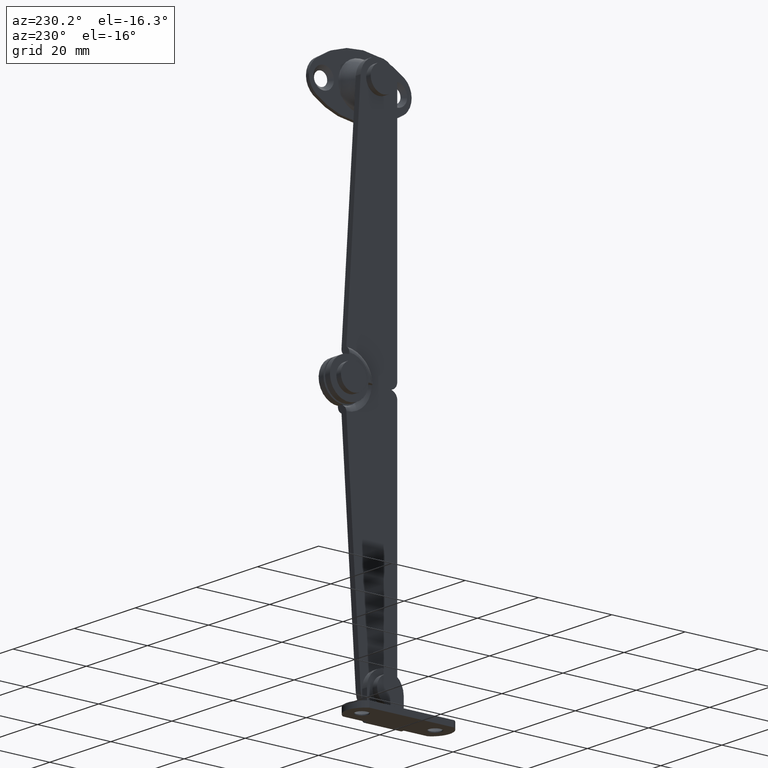
[diagram: clean part render]
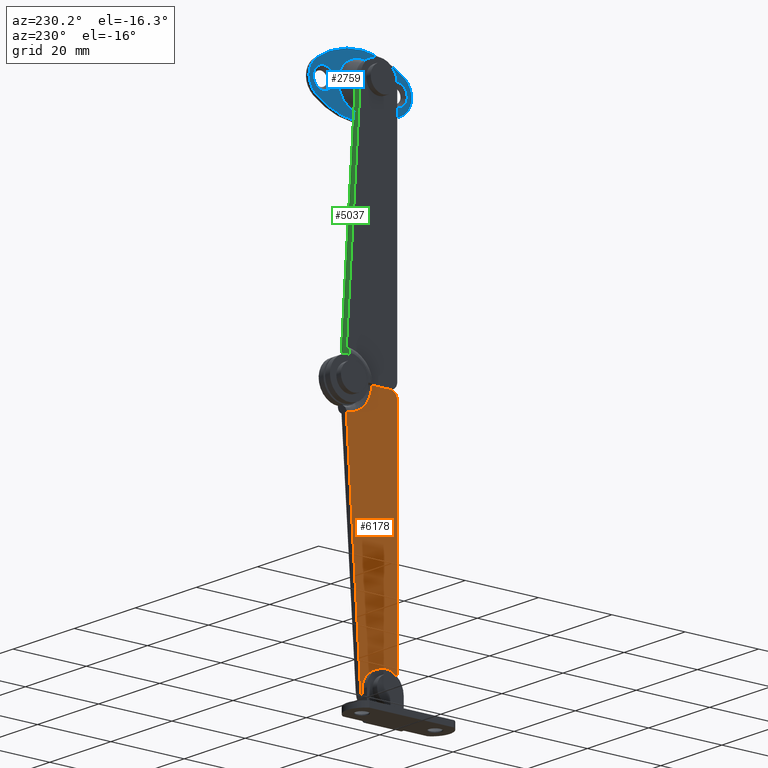
[diagram: same view with three faces highlighted in distinct colors, each labeled with its STEP entity id]
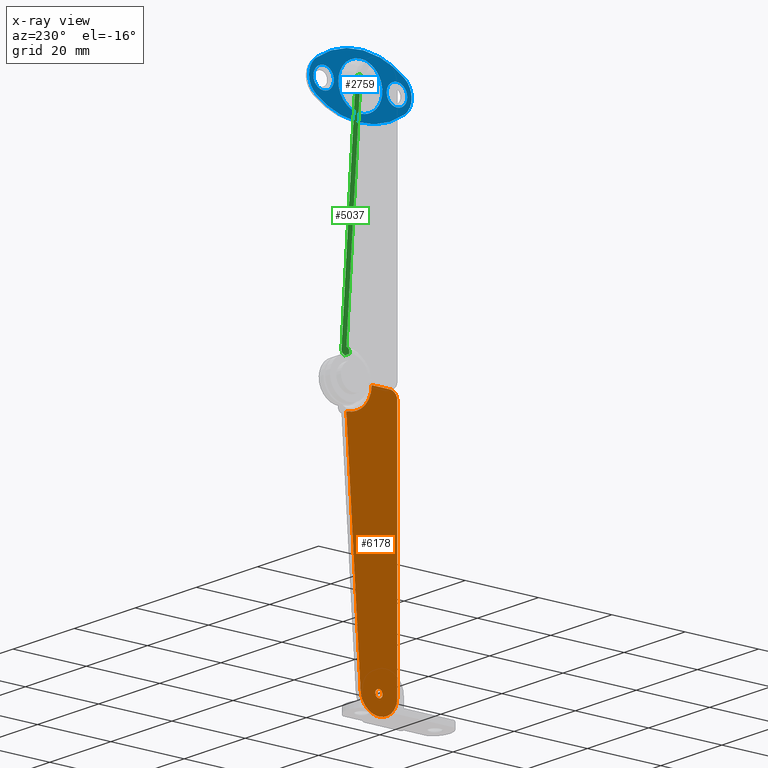
[diagram: x-ray of the same camera — body ghosted, the three highlighted faces saturated]
A machine part, auxiliary view with three faces highlighted in distinct colors.
The next image is the same camera in x-ray (body ghosted, the three faces saturated) — at least one of them is partly hidden behind the body in this view.
Their STEP definitions:

[orange] entity #6178 — the highlighted face is a freeform B-spline surface patch.
#5275=CARTESIAN_POINT('',(2.549987999998014,-2.683172118815608,-67.645771764199225));
#5276=VERTEX_POINT('',#5275);
#5277=CARTESIAN_POINT('',(2.549988000000050,-1.919616184445495,-68.000030000000010));
#5278=VERTEX_POINT('',#5277);
#5279=CARTESIAN_POINT('',(2.549987999998014,-2.683172118815608,-67.645771764199225));
#5280=CARTESIAN_POINT('',(2.549987999998243,-2.595603327746758,-67.749543014997982));
#5281=CARTESIAN_POINT('',(2.549987999998875,-2.362829680662697,-67.931769844433859));
#5282=CARTESIAN_POINT('',(2.549987999999638,-2.073503944997746,-68.000305190986140));
#5283=CARTESIAN_POINT('',(2.549988000000050,-1.919616184445495,-68.000030000000010));
#5284=B_SPLINE_CURVE_WITH_KNOTS('',3,(#5279,#5280,#5281,#5282,#5283),.UNSPECIFIED.,.F.,.U.,(4,1,4),(0.000000116544715,0.407290841089477,0.868828716377361),.UNSPECIFIED.);
#5285=EDGE_CURVE('',#5276,#5278,#5284,.T.);
#5338=CARTESIAN_POINT('',(2.549988000003763,-2.607970629555844,-66.274655568550969));
#5339=VERTEX_POINT('',#5338);
#5345=CARTESIAN_POINT('',(2.549988000000050,-1.919616184445495,-66.000029999999995));
#5346=VERTEX_POINT('',#5345);
#5347=CARTESIAN_POINT('',(2.549988000000050,-1.919616184445495,-66.000029999999995));
#5348=CARTESIAN_POINT('',(2.549988000000817,-2.062015485553450,-65.999824904008406));
#5349=CARTESIAN_POINT('',(2.549988000002188,-2.314862790564153,-66.055067979524438));
#5350=CARTESIAN_POINT('',(2.549988000003327,-2.527706558355432,-66.198390743589442));
#5351=CARTESIAN_POINT('',(2.549988000003763,-2.607970629555844,-66.274655568550969));
#5352=B_SPLINE_CURVE_WITH_KNOTS('',3,(#5347,#5348,#5349,#5350,#5351),.UNSPECIFIED.,.F.,.U.,(4,1,4),(0.000000071943661,0.427099908639599,0.759289230294971),.UNSPECIFIED.);
#5353=EDGE_CURVE('',#5346,#5339,#5352,.T.);
#5355=CARTESIAN_POINT('',(2.549988000000050,-0.919616184445512,-67.000029815553631));
#5356=VERTEX_POINT('',#5355);
#5357=CARTESIAN_POINT('',(2.549988000000050,-0.919616184445512,-67.000029815553631));
#5358=CARTESIAN_POINT('',(2.549988000000051,-0.919481447174809,-66.869107834173107));
#5359=CARTESIAN_POINT('',(2.549988000000049,-0.968514566673767,-66.623790008594980));
#5360=CARTESIAN_POINT('',(2.549988000000051,-1.172758694498950,-66.301021482622431));
#5361=CARTESIAN_POINT('',(2.549988000000052,-1.494360534941305,-66.062616695706126));
#5362=CARTESIAN_POINT('',(2.549988000000057,-1.772311175118522,-65.999803587308634));
#5363=CARTESIAN_POINT('',(2.549988000000050,-1.919616184445495,-66.000029999999995));
#5364=B_SPLINE_CURVE_WITH_KNOTS('',3,(#5357,#5358,#5359,#5360,#5361,#5362,#5363),.UNSPECIFIED.,.F.,.U.,(4,1,1,1,4),(0.000000232853815,0.392738664325392,0.736389808754300,1.129122720947868,1.570953779327885),.UNSPECIFIED.);
#5365=EDGE_CURVE('',#5356,#5346,#5364,.T.);
#5367=CARTESIAN_POINT('',(2.549988000000050,-1.919616184445495,-68.000030000000010));
#5368=CARTESIAN_POINT('',(2.549988000000053,-1.755921354376147,-68.000338805222484));
#5369=CARTESIAN_POINT('',(2.549988000000048,-1.510827598809567,-67.938435989623869));
#5370=CARTESIAN_POINT('',(2.549988000000048,-1.200772188080484,-67.720010938150622));
#5371=CARTESIAN_POINT('',(2.549988000000057,-0.982172228291304,-67.425318553708109));
#5372=CARTESIAN_POINT('',(2.549988000000046,-0.919410173935548,-67.147323302398846));
#5373=CARTESIAN_POINT('',(2.549988000000050,-0.919616184445512,-67.000029815553631));
#5374=B_SPLINE_CURVE_WITH_KNOTS('',3,(#5367,#5368,#5369,#5370,#5371,#5372,#5373),.UNSPECIFIED.,.F.,.U.,(4,1,1,1,4),(0.000000231876958,0.490926261531667,0.736389906305310,1.129122870276008,1.570953987262268),.UNSPECIFIED.);
#5375=EDGE_CURVE('',#5278,#5356,#5374,.T.);
#5394=CARTESIAN_POINT('',(2.549988000000050,-2.919616184445478,-67.000030184446388));
#5395=VERTEX_POINT('',#5394);
#5396=CARTESIAN_POINT('',(2.549988000000050,-2.919616184445478,-67.000030184446388));
#5397=CARTESIAN_POINT('',(2.549987999999629,-2.919766808498271,-67.131676093438145));
#5398=CARTESIAN_POINT('',(2.549987999998907,-2.872687993892445,-67.365538485281689));
#5399=CARTESIAN_POINT('',(2.549987999998257,-2.749319166814610,-67.567627343766858));
#5400=CARTESIAN_POINT('',(2.549987999998014,-2.683172118815608,-67.645771764199225));
#5401=B_SPLINE_CURVE_WITH_KNOTS('',3,(#5396,#5397,#5398,#5399,#5400),.UNSPECIFIED.,.F.,.U.,(4,1,4),(0.000000097201813,0.394893671305713,0.702050397232917),.UNSPECIFIED.);
#5402=EDGE_CURVE('',#5395,#5276,#5401,.T.);
#5404=CARTESIAN_POINT('',(2.549988000003763,-2.607970629555844,-66.274655568550969));
#5405=CARTESIAN_POINT('',(2.549988000003345,-2.693895390519011,-66.356057708835124));
#5406=CARTESIAN_POINT('',(2.549988000002216,-2.856551784684612,-66.577582877150533));
#5407=CARTESIAN_POINT('',(2.549988000000827,-2.919889351927218,-66.847795910584949));
#5408=CARTESIAN_POINT('',(2.549988000000050,-2.919616184445478,-67.000030184446388));
#5409=B_SPLINE_CURVE_WITH_KNOTS('',3,(#5404,#5405,#5406,#5407,#5408),.UNSPECIFIED.,.F.,.U.,(4,1,4),(0.000000100791723,0.355104070625514,0.811665313370158),.UNSPECIFIED.);
#5410=EDGE_CURVE('',#5339,#5395,#5409,.T.);
#5711=CARTESIAN_POINT('',(2.549988000000100,6.967233794826241,-7.001584790181060));
#5712=VERTEX_POINT('',#5711);
#5723=CARTESIAN_POINT('',(2.549988000000100,0.077884797254867,-2.558285E-015));
#5724=VERTEX_POINT('',#5723);
#5725=CARTESIAN_POINT('',(2.549988000000100,6.967233794826241,-7.001584790181060));
#5726=CARTESIAN_POINT('',(2.549988000000097,6.513700061865754,-6.994296324692864));
#5727=CARTESIAN_POINT('',(2.549988000000109,5.494830044232808,-6.878338535436286));
#5728=CARTESIAN_POINT('',(2.549988000000093,4.198813717470502,-6.431662050461872));
#5729=CARTESIAN_POINT('',(2.549988000000105,3.043626800575817,-5.760433784596992));
#5730=CARTESIAN_POINT('',(2.549988000000142,2.143627717567946,-5.017302159247257));
#5731=CARTESIAN_POINT('',(2.549988000000059,1.332897352812586,-4.063383455490646));
#5732=CARTESIAN_POINT('',(2.549988000000062,0.629622481415214,-2.858705035825897));
#5733=CARTESIAN_POINT('',(2.549988000000126,0.177287778857004,-1.474200598117341));
#5734=CARTESIAN_POINT('',(2.549988000000087,0.077857594597792,-0.453584153547086));
#5735=CARTESIAN_POINT('',(2.549988000000100,0.077884797254867,-2.558285E-015));
#5736=B_SPLINE_CURVE_WITH_KNOTS('',3,(#5725,#5726,#5727,#5728,#5729,#5730,#5731,#5732,#5733,#5734,#5735),.UNSPECIFIED.,.F.,.U.,(4,1,1,1,1,1,1,1,4),(0.000000168391248,1.360791377697382,3.061809649063527,4.082435467170000,5.358205720766605,6.548821211609316,7.824607300595920,9.525638363214146,10.886411700271969),.UNSPECIFIED.);
#5737=EDGE_CURVE('',#5712,#5724,#5736,.T.);
#5923=CARTESIAN_POINT('',(2.549988000000050,-4.919585184445620,-5.312255E-015));
#5924=VERTEX_POINT('',#5923);
#5932=CARTESIAN_POINT('',(2.549988000000050,-6.919616184445630,-2.0));
#5933=VERTEX_POINT('',#5932);
#5934=CARTESIAN_POINT('',(2.549988000000050,-6.919616184445630,-2.0));
#5935=CARTESIAN_POINT('',(2.549988000000050,-6.919969073609625,-1.721760037188062));
#5936=CARTESIAN_POINT('',(2.549988000000055,-6.825859580391352,-1.280314975602488));
#5937=CARTESIAN_POINT('',(2.549988000000038,-6.486809993456308,-0.714638332178403));
#5938=CARTESIAN_POINT('',(2.549988000000075,-6.122594342358444,-0.376319332033332));
#5939=CARTESIAN_POINT('',(2.549988000000013,-5.590202351491739,-0.083280129903408));
#5940=CARTESIAN_POINT('',(2.549988000000091,-5.197830399798504,0.000349934271693));
#5941=CARTESIAN_POINT('',(2.549988000000050,-4.919585184445620,-5.312255E-015));
#5942=B_SPLINE_CURVE_WITH_KNOTS('',3,(#5934,#5935,#5936,#5937,#5938,#5939,#5940,#5941),.UNSPECIFIED.,.F.,.U.,(4,1,1,1,1,4),(0.000000310908894,0.834514307899375,1.325443339657224,1.963523907426000,2.307174980784334,3.141688961390943),.UNSPECIFIED.);
#5943=EDGE_CURVE('',#5933,#5924,#5942,.T.);
#5980=CARTESIAN_POINT('',(2.549988000000100,0.077884797254867,-2.558285E-015));
#5981=CARTESIAN_POINT('',(2.549988000000050,-4.919585184445620,-5.312255E-015));
#5982=QUASI_UNIFORM_CURVE('',1,(#5980,#5981),.UNSPECIFIED.,.F.,.U.);
#5983=EDGE_CURVE('',#5724,#5924,#5982,.T.);
#6007=CARTESIAN_POINT('',(2.549988000000050,3.070007815554400,-67.322387000000091));
#6008=VERTEX_POINT('',#6007);
#6014=CARTESIAN_POINT('',(2.549988000000050,3.070007815554400,-67.322387000000091));
#6015=CARTESIAN_POINT('',(2.549988000000100,6.967233794826241,-7.001584790181060));
#6016=QUASI_UNIFORM_CURVE('',1,(#6014,#6015),.UNSPECIFIED.,.F.,.U.);
#6017=EDGE_CURVE('',#6008,#5712,#6016,.T.);
#6049=CARTESIAN_POINT('',(2.549988000000050,-6.919616184445561,-67.000029999999995));
#6050=VERTEX_POINT('',#6049);
#6058=CARTESIAN_POINT('',(2.549988000000050,-2.080867323739533,-71.997428857317587));
#6059=VERTEX_POINT('',#6058);
#6060=CARTESIAN_POINT('',(2.549988000000050,-2.080867323739533,-71.997428857317587));
#6061=CARTESIAN_POINT('',(2.549988000000046,-2.461305816388501,-71.985234025627832));
#6062=CARTESIAN_POINT('',(2.549988000000057,-3.179402257838975,-71.879160279421697));
#6063=CARTESIAN_POINT('',(2.549988000000047,-4.309123474969920,-71.450500532551388));
#6064=CARTESIAN_POINT('',(2.549988000000039,-5.305150862698738,-70.755550113134476));
#6065=CARTESIAN_POINT('',(2.549988000000049,-6.178747508425649,-69.724916941400735));
#6066=CARTESIAN_POINT('',(2.549988000000065,-6.770953170669359,-68.482406968700431));
#6067=CARTESIAN_POINT('',(2.549988000000019,-6.919829461844822,-67.500869948931054));
#6068=CARTESIAN_POINT('',(2.549988000000050,-6.919616184445561,-67.000029999999995));
#6069=B_SPLINE_CURVE_WITH_KNOTS('',3,(#6060,#6061,#6062,#6063,#6064,#6065,#6066,#6067,#6068),.UNSPECIFIED.,.F.,.U.,(4,1,1,1,1,1,4),(0.000000180046436,1.141885685588114,2.163585891606613,3.606003750065391,4.747858654597471,6.190266212549868,7.692743177836299),.UNSPECIFIED.);
#6070=EDGE_CURVE('',#6059,#6050,#6069,.T.);
#6072=CARTESIAN_POINT('',(2.549988000000050,3.070007815554400,-67.322387000000091));
#6073=CARTESIAN_POINT('',(2.549988000000045,3.031743134583841,-67.922235660782405));
#6074=CARTESIAN_POINT('',(2.549988000000035,2.789157032658067,-68.889859280268340));
#6075=CARTESIAN_POINT('',(2.549988000000065,2.115942723106529,-70.014420115985331));
#6076=CARTESIAN_POINT('',(2.549988000000048,1.306931436342650,-70.883652279449024));
#6077=CARTESIAN_POINT('',(2.549988000000023,0.325416809679871,-71.527799994288529));
#6078=CARTESIAN_POINT('',(2.549988000000061,-0.876370373418392,-71.937023308299231));
#6079=CARTESIAN_POINT('',(2.549988000000046,-1.660387388560840,-72.011118729401304));
#6080=CARTESIAN_POINT('',(2.549988000000050,-2.080867323739533,-71.997428857317587));
#6081=B_SPLINE_CURVE_WITH_KNOTS('',3,(#6072,#6073,#6074,#6075,#6076,#6077,#6078,#6079,#6080),.UNSPECIFIED.,.F.,.U.,(4,1,1,1,1,1,4),(0.000000180037700,1.802986081746607,2.944890143732552,3.906416162598282,5.348851786453704,6.430670918909739,7.692747699474815),.UNSPECIFIED.);
#6082=EDGE_CURVE('',#6008,#6059,#6081,.T.);
#6126=CARTESIAN_POINT('',(2.549988000000050,-6.919616184445630,-2.0));
#6127=CARTESIAN_POINT('',(2.549988000000050,-6.919616184445561,-67.000029999999995));
#6128=QUASI_UNIFORM_CURVE('',1,(#6126,#6127),.UNSPECIFIED.,.F.,.U.);
#6129=EDGE_CURVE('',#5933,#6050,#6128,.T.);
#6156=CARTESIAN_POINT('',(2.549988000000100,-7.613264444354663,3.596357602382816));
#6157=CARTESIAN_POINT('',(2.549988000000100,7.660882303051500,3.596357602382816));
#6158=CARTESIAN_POINT('',(2.549988000000100,-7.613264444354663,-75.595513526052997));
#6159=CARTESIAN_POINT('',(2.549988000000100,7.660882303051500,-75.595513526052997));
#6160=B_SPLINE_SURFACE_WITH_KNOTS('',1,1,((#6156,#6158),(#6157,#6159)),.UNSPECIFIED.,.F.,.F.,.U.,(2,2),(2,2),(0.0,15.274146747406160),(0.0,79.191871128435807),.UNSPECIFIED.);
#6161=ORIENTED_EDGE('',*,*,#6017,.F.);
#6162=ORIENTED_EDGE('',*,*,#6082,.T.);
#6163=ORIENTED_EDGE('',*,*,#6070,.T.);
#6164=ORIENTED_EDGE('',*,*,#6129,.F.);
#6165=ORIENTED_EDGE('',*,*,#5943,.T.);
#6166=ORIENTED_EDGE('',*,*,#5983,.F.);
#6167=ORIENTED_EDGE('',*,*,#5737,.F.);
#6168=EDGE_LOOP('',(#6161,#6162,#6163,#6164,#6165,#6166,#6167));
#6169=FACE_OUTER_BOUND('',#6168,.T.);
#6170=ORIENTED_EDGE('',*,*,#5375,.T.);
#6171=ORIENTED_EDGE('',*,*,#5365,.T.);
#6172=ORIENTED_EDGE('',*,*,#5353,.T.);
#6173=ORIENTED_EDGE('',*,*,#5410,.T.);
#6174=ORIENTED_EDGE('',*,*,#5402,.T.);
#6175=ORIENTED_EDGE('',*,*,#5285,.T.);
#6176=EDGE_LOOP('',(#6170,#6171,#6172,#6173,#6174,#6175));
#6177=FACE_BOUND('',#6176,.T.);
#6178=ADVANCED_FACE('',(#6169,#6177),#6160,.T.);

[blue] entity #2759 — the highlighted face is a freeform B-spline surface patch.
#1243=CARTESIAN_POINT('',(8.649993630937590,-3.137956645631975,68.808108422427921));
#1244=VERTEX_POINT('',#1243);
#1245=CARTESIAN_POINT('',(8.649994000000101,-1.0,69.800029999999992));
#1246=VERTEX_POINT('',#1245);
#1247=CARTESIAN_POINT('',(8.649993630937590,-3.137956645631975,68.808108422427921));
#1248=CARTESIAN_POINT('',(8.649993667628438,-2.925408776370701,69.059846005896944));
#1249=CARTESIAN_POINT('',(8.649993739488656,-2.509127070285204,69.404450570696554));
#1250=CARTESIAN_POINT('',(8.649993868782195,-1.760137190019883,69.727512505576087));
#1251=CARTESIAN_POINT('',(8.649993951880092,-1.278756440709127,69.800157420569079));
#1252=CARTESIAN_POINT('',(8.649994000000101,-1.0,69.800029999999992));
#1253=B_SPLINE_CURVE_WITH_KNOTS('',3,(#1247,#1248,#1249,#1250,#1251,#1252),.UNSPECIFIED.,.F.,.U.,(4,1,1,4),(0.000000050091778,0.988301689018211,1.596461705757537,2.432719718253757),.UNSPECIFIED.);
#1254=EDGE_CURVE('',#1244,#1246,#1253,.T.);
#1256=CARTESIAN_POINT('',(8.649994000000099,1.799999999998399,67.000027005940808));
#1257=VERTEX_POINT('',#1256);
#1258=CARTESIAN_POINT('',(8.649994000000101,-1.0,69.800029999999992));
#1259=CARTESIAN_POINT('',(8.649994000000113,-0.748017012118859,69.800096808245939));
#1260=CARTESIAN_POINT('',(8.649994000000072,-0.198244517671662,69.725377684504821));
#1261=CARTESIAN_POINT('',(8.649994000000147,0.561154969197061,69.377705141700503));
#1262=CARTESIAN_POINT('',(8.649994000000065,1.110122793296331,68.879938744922796));
#1263=CARTESIAN_POINT('',(8.649994000000143,1.461253318690337,68.367989780884926));
#1264=CARTESIAN_POINT('',(8.649994000000058,1.722505401679822,67.778785380494412));
#1265=CARTESIAN_POINT('',(8.649994000000092,1.800161823106896,67.297842417773779));
#1266=CARTESIAN_POINT('',(8.649994000000099,1.799999999998399,67.000027005940808));
#1267=B_SPLINE_CURVE_WITH_KNOTS('',3,(#1258,#1259,#1260,#1261,#1262,#1263,#1264,#1265,#1266),.UNSPECIFIED.,.F.,.U.,(4,1,1,1,1,1,4),(0.000000239387013,0.755961575067528,1.649409889633666,2.474028024354384,2.955134356900397,3.504940765593461,4.398341771694124),.UNSPECIFIED.);
#1268=EDGE_CURVE('',#1246,#1257,#1267,.T.);
#1270=CARTESIAN_POINT('',(8.649994000000101,-1.0,64.200029999999998));
#1271=VERTEX_POINT('',#1270);
#1272=CARTESIAN_POINT('',(8.649994000000099,1.799999999998399,67.000027005940808));
#1273=CARTESIAN_POINT('',(8.649994000000094,1.800532265572838,66.610501086252583));
#1274=CARTESIAN_POINT('',(8.649994000000113,1.659003348921229,65.946664469265059));
#1275=CARTESIAN_POINT('',(8.649994000000097,1.126363894917988,65.105263939355154));
#1276=CARTESIAN_POINT('',(8.649994000000106,0.515347878219988,64.603909524340494));
#1277=CARTESIAN_POINT('',(8.649994000000090,-0.221254742755975,64.277544619348646));
#1278=CARTESIAN_POINT('',(8.649994000000108,-0.702185422454748,64.199870827807089));
#1279=CARTESIAN_POINT('',(8.649994000000101,-1.0,64.200029999999998));
#1280=B_SPLINE_CURVE_WITH_KNOTS('',3,(#1272,#1273,#1274,#1275,#1276,#1277,#1278,#1279),.UNSPECIFIED.,.F.,.U.,(4,1,1,1,1,4),(0.000000243493628,1.168311094732095,1.993047415938312,2.955132093826851,3.504938074727157,4.398338396607395),.UNSPECIFIED.);
#1281=EDGE_CURVE('',#1257,#1271,#1280,.T.);
#1283=CARTESIAN_POINT('',(8.649994089151260,-2.927392236657858,64.968982368631885));
#1284=VERTEX_POINT('',#1283);
#1285=CARTESIAN_POINT('',(8.649994000000101,-1.0,64.200029999999998));
#1286=CARTESIAN_POINT('',(8.649994015365673,-1.332193874119682,64.199775615745509));
#1287=CARTESIAN_POINT('',(8.649994048133040,-2.040604100192399,64.327659470620333));
#1288=CARTESIAN_POINT('',(8.649994076531968,-2.654571057818087,64.709513146423504));
#1289=CARTESIAN_POINT('',(8.649994089151260,-2.927392236657858,64.968982368631885));
#1290=B_SPLINE_CURVE_WITH_KNOTS('',3,(#1285,#1286,#1287,#1288,#1289),.UNSPECIFIED.,.F.,.U.,(4,1,4),(0.000000059134687,0.996512504752623,2.125860560494158),.UNSPECIFIED.);
#1291=EDGE_CURVE('',#1271,#1284,#1290,.T.);
#1368=CARTESIAN_POINT('',(8.649994000000101,-3.799999999998399,67.000032994059168));
#1369=VERTEX_POINT('',#1368);
#1370=CARTESIAN_POINT('',(8.649994000000101,-3.799999999998399,67.000032994059168));
#1371=CARTESIAN_POINT('',(8.649993937305098,-3.800181801537673,67.307182371461423));
#1372=CARTESIAN_POINT('',(8.649993803592633,-3.691097693516440,67.962253880311295));
#1373=CARTESIAN_POINT('',(8.649993685153996,-3.362963850131986,68.542496822353712));
#1374=CARTESIAN_POINT('',(8.649993630937590,-3.137956645631975,68.808108422427921));
#1375=B_SPLINE_CURVE_WITH_KNOTS('',3,(#1370,#1371,#1372,#1373,#1374),.UNSPECIFIED.,.F.,.U.,(4,1,4),(0.000000054023581,0.921402905093823,1.965621971949414),.UNSPECIFIED.);
#1376=EDGE_CURVE('',#1369,#1244,#1375,.T.);
#1398=CARTESIAN_POINT('',(8.649994089151260,-2.927392236657858,64.968982368631885));
#1399=CARTESIAN_POINT('',(8.649994077008783,-3.219777319551693,65.245613598677195));
#1400=CARTESIAN_POINT('',(8.649994048822665,-3.653843650210657,65.887753182524477));
#1401=CARTESIAN_POINT('',(8.649994015587900,-3.800349284746812,66.644910128815468));
#1402=CARTESIAN_POINT('',(8.649994000000101,-3.799999999998399,67.000032994059168));
#1403=B_SPLINE_CURVE_WITH_KNOTS('',3,(#1398,#1399,#1400,#1401,#1402),.UNSPECIFIED.,.F.,.U.,(4,1,4),(0.000000057617484,1.207244773354818,2.272482227485308),.UNSPECIFIED.);
#1404=EDGE_CURVE('',#1284,#1369,#1403,.T.);
#1435=CARTESIAN_POINT('',(8.649993630937585,16.862043354368009,68.808108422427921));
#1436=VERTEX_POINT('',#1435);
#1437=CARTESIAN_POINT('',(8.649994000000101,19.0,69.800029999999992));
#1438=VERTEX_POINT('',#1437);
#1439=CARTESIAN_POINT('',(8.649993630937585,16.862043354368009,68.808108422427921));
#1440=CARTESIAN_POINT('',(8.649993661996199,17.041963977859069,69.021022465686670));
#1441=CARTESIAN_POINT('',(8.649993731879182,17.446791932005102,69.375491426724224));
#1442=CARTESIAN_POINT('',(8.649993860032378,18.189175476357640,69.719926275769964));
#1443=CARTESIAN_POINT('',(8.649993951879880,18.721242502632361,69.800145380850495));
#1444=CARTESIAN_POINT('',(8.649994000000101,19.0,69.800029999999992));
#1445=B_SPLINE_CURVE_WITH_KNOTS('',3,(#1439,#1440,#1441,#1442,#1443,#1444),.UNSPECIFIED.,.F.,.U.,(4,1,1,4),(0.000000050091532,0.836256466798679,1.596461705757188,2.432719718253786),.UNSPECIFIED.);
#1446=EDGE_CURVE('',#1436,#1438,#1445,.T.);
#1448=CARTESIAN_POINT('',(8.649994000000099,21.799999999998398,67.000027005940808));
#1449=VERTEX_POINT('',#1448);
#1450=CARTESIAN_POINT('',(8.649994000000101,19.0,69.800029999999992));
#1451=CARTESIAN_POINT('',(8.649994000000094,19.343646684530540,69.800307193827024));
#1452=CARTESIAN_POINT('',(8.649994000000119,20.007795610519569,69.676220783986125));
#1453=CARTESIAN_POINT('',(8.649994000000072,20.725612345286759,69.246014683332234));
#1454=CARTESIAN_POINT('',(8.649994000000143,21.239361602392350,68.719275810351306));
#1455=CARTESIAN_POINT('',(8.649994000000026,21.663902031377869,68.030519956455620));
#1456=CARTESIAN_POINT('',(8.649994000000120,21.800525738982358,67.389549682811179));
#1457=CARTESIAN_POINT('',(8.649994000000099,21.799999999998398,67.000027005940808));
#1458=B_SPLINE_CURVE_WITH_KNOTS('',3,(#1450,#1451,#1452,#1453,#1454,#1455,#1456,#1457),.UNSPECIFIED.,.F.,.U.,(4,1,1,1,1,4),(0.000000239393993,1.030859910802457,1.993048942022603,2.474028024355735,3.230030323002261,4.398341771694117),.UNSPECIFIED.);
#1459=EDGE_CURVE('',#1438,#1449,#1458,.T.);
#1461=CARTESIAN_POINT('',(8.649994000000101,19.0,64.200029999999998));
#1462=VERTEX_POINT('',#1461);
#1463=CARTESIAN_POINT('',(8.649994000000099,21.799999999998398,67.000027005940808));
#1464=CARTESIAN_POINT('',(8.649994000000097,21.800537118978720,66.610482282016832));
#1465=CARTESIAN_POINT('',(8.649994000000115,21.683372474840141,66.061164280541220));
#1466=CARTESIAN_POINT('',(8.649994000000094,21.284212032123001,65.335995275202265));
#1467=CARTESIAN_POINT('',(8.649994000000078,20.848839978441411,64.855570396299612));
#1468=CARTESIAN_POINT('',(8.649994000000145,20.288512489217091,64.491165681000524));
#1469=CARTESIAN_POINT('',(8.649994000000056,19.687185535585211,64.259205117316128));
#1470=CARTESIAN_POINT('',(8.649994000000152,19.251990646456640,64.199941890874811));
#1471=CARTESIAN_POINT('',(8.649994000000101,19.0,64.200029999999998));
#1472=B_SPLINE_CURVE_WITH_KNOTS('',3,(#1463,#1464,#1465,#1466,#1467,#1468,#1469,#1470,#1471),.UNSPECIFIED.,.F.,.U.,(4,1,1,1,1,1,4),(0.000000243497372,1.168311094733927,1.649408627879368,2.474026122051812,3.092569638191408,3.642375624256520,4.398338396607335),.UNSPECIFIED.);
#1473=EDGE_CURVE('',#1449,#1462,#1472,.T.);
#1475=CARTESIAN_POINT('',(8.649994089151264,17.072607763342148,64.968982368631885));
#1476=VERTEX_POINT('',#1475);
#1477=CARTESIAN_POINT('',(8.649994000000101,19.0,64.200029999999998));
#1478=CARTESIAN_POINT('',(8.649994017415313,18.623494303147361,64.199612630589129));
#1479=CARTESIAN_POINT('',(8.649994050173117,17.915290538239400,64.345258472051214));
#1480=CARTESIAN_POINT('',(8.649994078013625,17.313396942109730,64.740128580615803));
#1481=CARTESIAN_POINT('',(8.649994089151264,17.072607763342148,64.968982368631885));
#1482=B_SPLINE_CURVE_WITH_KNOTS('',3,(#1477,#1478,#1479,#1480,#1481),.UNSPECIFIED.,.F.,.U.,(4,1,4),(0.000000059135506,1.129348114887015,2.125860560494129),.UNSPECIFIED.);
#1483=EDGE_CURVE('',#1462,#1476,#1482,.T.);
#1559=CARTESIAN_POINT('',(8.649994000000101,16.200000000001602,67.000032994059183));
#1560=VERTEX_POINT('',#1559);
#1561=CARTESIAN_POINT('',(8.649994000000101,16.200000000001602,67.000032994059183));
#1562=CARTESIAN_POINT('',(8.649993937305414,16.199818909870171,67.307180928438015));
#1563=CARTESIAN_POINT('',(8.649993803592352,16.308900613305699,67.962255118932703));
#1564=CARTESIAN_POINT('',(8.649993685153998,16.637037001056441,68.542496694038547));
#1565=CARTESIAN_POINT('',(8.649993630937585,16.862043354368009,68.808108422427921));
#1566=B_SPLINE_CURVE_WITH_KNOTS('',3,(#1561,#1562,#1563,#1564,#1565),.UNSPECIFIED.,.F.,.U.,(4,1,4),(0.000000054023651,0.921402905093806,1.965621971949406),.UNSPECIFIED.);
#1567=EDGE_CURVE('',#1560,#1436,#1566,.T.);
#1589=CARTESIAN_POINT('',(8.649994089151264,17.072607763342148,64.968982368631885));
#1590=CARTESIAN_POINT('',(8.649994077008607,16.780243574331461,65.245617820687940));
#1591=CARTESIAN_POINT('',(8.649994048823201,16.346097439523380,65.887740825422114));
#1592=CARTESIAN_POINT('',(8.649994015587575,16.199688874842220,66.644917587690259));
#1593=CARTESIAN_POINT('',(8.649994000000101,16.200000000001602,67.000032994059183));
#1594=B_SPLINE_CURVE_WITH_KNOTS('',3,(#1589,#1590,#1591,#1592,#1593),.UNSPECIFIED.,.F.,.U.,(4,1,4),(0.000000057613848,1.207244773353856,2.272482227485334),.UNSPECIFIED.);
#1595=EDGE_CURVE('',#1476,#1560,#1594,.T.);
#2363=CARTESIAN_POINT('',(8.649994000022437,3.386929346885824,64.880212675237146));
#2364=VERTEX_POINT('',#2363);
#2374=CARTESIAN_POINT('',(8.649994000000108,9.0,73.000045637242678));
#2375=VERTEX_POINT('',#2374);
#2376=CARTESIAN_POINT('',(8.649994000022437,3.386929346885824,64.880212675237146));
#2377=CARTESIAN_POINT('',(8.649994000019881,3.194814658265708,65.388471457394715));
#2378=CARTESIAN_POINT('',(8.649994000014639,2.943216660791182,66.487274071585432));
#2379=CARTESIAN_POINT('',(8.649994000008393,3.025374839549263,68.009900081775314));
#2380=CARTESIAN_POINT('',(8.649994000003494,3.440652357340120,69.373694158415290));
#2381=CARTESIAN_POINT('',(8.649993999999779,4.118784268175634,70.595610926006486));
#2382=CARTESIAN_POINT('',(8.649993999997578,5.079889469446989,71.615480227868616));
#2383=CARTESIAN_POINT('',(8.649993999996909,6.094178558553029,72.281298173140840));
#2384=CARTESIAN_POINT('',(8.649993999997260,7.340053734557944,72.830456382739840));
#2385=CARTESIAN_POINT('',(8.649993999998594,8.305628356148544,73.000603741964269));
#2386=CARTESIAN_POINT('',(8.649994000000108,9.0,73.000045637242678));
#2387=B_SPLINE_CURVE_WITH_KNOTS('',3,(#2376,#2377,#2378,#2379,#2380,#2381,#2382,#2383,#2384,#2385,#2386),.UNSPECIFIED.,.F.,.U.,(4,1,1,1,1,1,1,1,4),(0.000000262273028,1.630053265556576,3.350676797487553,4.527975877229800,5.886261497288723,7.516356038900966,8.693631295466718,9.508660525948983,11.591508305517490),.UNSPECIFIED.);
#2388=EDGE_CURVE('',#2364,#2375,#2387,.T.);
#2390=CARTESIAN_POINT('',(8.649994000000108,15.000015637242321,67.000027953265047));
#2391=VERTEX_POINT('',#2390);
#2392=CARTESIAN_POINT('',(8.649994000000108,9.0,73.000045637242678));
#2393=CARTESIAN_POINT('',(8.649994000001273,9.515429058585937,73.000203564728167));
#2394=CARTESIAN_POINT('',(8.649994000002922,10.374363374282529,72.888614916362158));
#2395=CARTESIAN_POINT('',(8.649994000004906,11.742951274167570,72.399116981749771));
#2396=CARTESIAN_POINT('',(8.649994000005766,12.845166025925410,71.682104852094696));
#2397=CARTESIAN_POINT('',(8.649994000005631,13.790652834269030,70.676405496811398));
#2398=CARTESIAN_POINT('',(8.649994000004901,14.379000343579611,69.734606031903681));
#2399=CARTESIAN_POINT('',(8.649994000002916,14.865155863797980,68.497053708403357));
#2400=CARTESIAN_POINT('',(8.649994000001792,15.000271343503099,67.589111102121834));
#2401=CARTESIAN_POINT('',(8.649994000000108,15.000015637242321,67.000027953265047));
#2402=B_SPLINE_CURVE_WITH_KNOTS('',3,(#2392,#2393,#2394,#2395,#2396,#2397,#2398,#2399,#2400,#2401),.UNSPECIFIED.,.F.,.U.,(4,1,1,1,1,1,1,4),(0.000000185036775,1.546245991990987,2.577116491012993,4.344281694005508,5.448744102363587,6.700485973291992,7.657714641266618,9.424862813922319),.UNSPECIFIED.);
#2403=EDGE_CURVE('',#2375,#2391,#2402,.T.);
#2405=CARTESIAN_POINT('',(8.649993999973248,9.0,61.000014362763316));
#2406=VERTEX_POINT('',#2405);
#2407=CARTESIAN_POINT('',(8.649994000000108,15.000015637242321,67.000027953265047));
#2408=CARTESIAN_POINT('',(8.649993999998964,15.000168749330120,66.484599011201553));
#2409=CARTESIAN_POINT('',(8.649993999996516,14.875886115736520,65.527481858204382));
#2410=CARTESIAN_POINT('',(8.649993999992477,14.369372669336880,64.214201789168527));
#2411=CARTESIAN_POINT('',(8.649993999988432,13.655930133254310,63.146567906474537));
#2412=CARTESIAN_POINT('',(8.649993999984204,12.667491883252881,62.181958022614907));
#2413=CARTESIAN_POINT('',(8.649993999979690,11.477853860134809,61.468869119227122));
#2414=CARTESIAN_POINT('',(8.649993999976381,10.178095442982270,61.074759738174933));
#2415=CARTESIAN_POINT('',(8.649993999973646,9.368155211937587,60.999988997409659));
#2416=CARTESIAN_POINT('',(8.649993999973248,9.0,61.000014362763316));
#2417=B_SPLINE_CURVE_WITH_KNOTS('',3,(#2407,#2408,#2409,#2410,#2411,#2412,#2413,#2414,#2415,#2416),.UNSPECIFIED.,.F.,.U.,(4,1,1,1,1,1,1,4),(0.000000185787968,1.546245614044859,2.871639576806120,4.197044605300071,5.375071623262690,6.995011904250278,8.320385099566954,9.424860506757097),.UNSPECIFIED.);
#2418=EDGE_CURVE('',#2391,#2406,#2417,.T.);
#2453=CARTESIAN_POINT('',(8.649993999973248,9.0,61.000014362763316));
#2454=CARTESIAN_POINT('',(8.649993999975957,8.584161107773776,60.999949552849067));
#2455=CARTESIAN_POINT('',(8.649993999981344,7.790323377249011,61.082891058126457));
#2456=CARTESIAN_POINT('',(8.649993999990343,6.594077606932776,61.456021222968452));
#2457=CARTESIAN_POINT('',(8.649993999999731,5.465329566686735,62.087912047826649));
#2458=CARTESIAN_POINT('',(8.649994000011215,4.253916722600785,63.187554801773523));
#2459=CARTESIAN_POINT('',(8.649994000018584,3.640191249697319,64.207985273819602));
#2460=CARTESIAN_POINT('',(8.649994000022437,3.386929346885824,64.880212675237146));
#2461=B_SPLINE_CURVE_WITH_KNOTS('',3,(#2453,#2454,#2455,#2456,#2457,#2458,#2459,#2460),.UNSPECIFIED.,.F.,.U.,(4,1,1,1,1,4),(0.000000071503374,1.247522770250789,2.381634729406779,3.742554732576715,5.103496094852611,7.258314784804108),.UNSPECIFIED.);
#2462=EDGE_CURVE('',#2406,#2364,#2461,.T.);
#2539=CARTESIAN_POINT('',(8.649994000000108,21.000004105534899,71.000018170845408));
#2540=VERTEX_POINT('',#2539);
#2546=CARTESIAN_POINT('',(8.649994000000108,-3.000003686655965,71.000018485002698));
#2547=VERTEX_POINT('',#2546);
#2548=CARTESIAN_POINT('',(8.649994000000108,21.000004105534899,71.000018170845408));
#2549=CARTESIAN_POINT('',(8.649994000000110,19.606001646960149,72.046143202203723));
#2550=CARTESIAN_POINT('',(8.649994000000133,17.308211407882570,73.338960775923397));
#2551=CARTESIAN_POINT('',(8.649994000000085,13.797255662421231,74.489476774128008));
#2552=CARTESIAN_POINT('',(8.649994000000111,10.417586295951351,75.073117327251751));
#2553=CARTESIAN_POINT('',(8.649994000000108,7.046204711772325,75.005334864968418));
#2554=CARTESIAN_POINT('',(8.649994000000072,3.749603707193088,74.367555696230056));
#2555=CARTESIAN_POINT('',(8.649994000000179,0.506970231759648,73.250408579789962));
#2556=CARTESIAN_POINT('',(8.649994000000053,-1.766815448378164,71.925355119100587));
#2557=CARTESIAN_POINT('',(8.649994000000108,-3.000003686655965,71.000018485002698));
#2558=B_SPLINE_CURVE_WITH_KNOTS('',3,(#2548,#2549,#2550,#2551,#2552,#2553,#2554,#2555,#2556,#2557),.UNSPECIFIED.,.F.,.U.,(4,1,1,1,1,1,1,4),(0.000000048449976,5.228463803631286,7.842709766473440,11.060233049703699,15.484287527659500,17.897456305826140,21.114989854946430,25.740166943320830),.UNSPECIFIED.);
#2559=EDGE_CURVE('',#2540,#2547,#2558,.T.);
#2600=CARTESIAN_POINT('',(8.649994000000108,21.000000295162049,63.000032721371902));
#2601=VERTEX_POINT('',#2600);
#2607=CARTESIAN_POINT('',(8.649994000000108,21.000000295162049,63.000032721371902));
#2608=CARTESIAN_POINT('',(8.649994000000085,21.251154371928251,63.188357881167747));
#2609=CARTESIAN_POINT('',(8.649994000000175,21.735772994078982,63.628852382171097));
#2610=CARTESIAN_POINT('',(8.649994000000024,22.270331946299990,64.350520155255978));
#2611=CARTESIAN_POINT('',(8.649994000000149,22.703483984053459,65.216780217272444));
#2612=CARTESIAN_POINT('',(8.649994000000117,22.941376703953871,66.059013162151430));
#2613=CARTESIAN_POINT('',(8.649994000000065,23.025423516828180,67.023830247763797));
#2614=CARTESIAN_POINT('',(8.649994000000204,22.943270519853080,67.966871295907893));
#2615=CARTESIAN_POINT('',(8.649993999999943,22.595018730077818,69.105092560633153));
#2616=CARTESIAN_POINT('',(8.649994000000216,21.943935458053542,70.165701571552646));
#2617=CARTESIAN_POINT('',(8.649994000000099,21.309104586485340,70.768234190709236));
#2618=CARTESIAN_POINT('',(8.649994000000108,21.000004105534899,71.000018170845408));
#2619=B_SPLINE_CURVE_WITH_KNOTS('',3,(#2607,#2608,#2609,#2610,#2611,#2612,#2613,#2614,#2615,#2616,#2617,#2618),.UNSPECIFIED.,.F.,.U.,(4,1,1,1,1,1,1,1,1,4),(0.000000283874277,0.941756870447453,1.956019835069806,2.680493443352812,3.839642157791069,4.564122549599736,5.578253375811129,6.664978479389026,8.113924067409426,9.273014752692442),.UNSPECIFIED.);
#2620=EDGE_CURVE('',#2601,#2540,#2619,.T.);
#2655=CARTESIAN_POINT('',(8.649994000000108,-3.000000015909705,63.000032511932403));
#2656=VERTEX_POINT('',#2655);
#2662=CARTESIAN_POINT('',(8.649994000000108,-3.000000015909705,63.000032511932403));
#2663=CARTESIAN_POINT('',(8.649994000000092,-1.605997751023824,61.953897591322423));
#2664=CARTESIAN_POINT('',(8.649994000000151,0.691800802045826,60.661138051571278));
#2665=CARTESIAN_POINT('',(8.649994000000062,4.458080552774335,59.426777289652279));
#2666=CARTESIAN_POINT('',(8.649994000000161,7.721724107517023,58.930694067893647));
#2667=CARTESIAN_POINT('',(8.649994000000090,11.082639255447400,59.032288215943922));
#2668=CARTESIAN_POINT('',(8.649994000000135,13.991012173575500,59.564494798660547));
#2669=CARTESIAN_POINT('',(8.649994000000088,17.369813477313471,60.690608280784382));
#2670=CARTESIAN_POINT('',(8.649994000000099,19.659603674296100,61.994164961118713));
#2671=CARTESIAN_POINT('',(8.649994000000108,21.000000295162049,63.000032721371902));
#2672=B_SPLINE_CURVE_WITH_KNOTS('',3,(#2662,#2663,#2664,#2665,#2666,#2667,#2668,#2669,#2670,#2671),.UNSPECIFIED.,.F.,.U.,(4,1,1,1,1,1,1,4),(0.000000048470827,5.228461091149526,7.842705697700037,11.864645613613570,15.082092491760569,17.897447020660032,20.712783386384249,25.740153589354961),.UNSPECIFIED.);
#2673=EDGE_CURVE('',#2656,#2601,#2672,.T.);
#2708=CARTESIAN_POINT('',(8.649994000000108,-3.000003686655965,71.000018485002698));
#2709=CARTESIAN_POINT('',(8.649994000000108,-3.270483891115501,70.797204984290957));
#2710=CARTESIAN_POINT('',(8.649994000000103,-3.787938948504215,70.319991943571111));
#2711=CARTESIAN_POINT('',(8.649994000000113,-4.377221509698059,69.487155830606397));
#2712=CARTESIAN_POINT('',(8.649994000000103,-4.805499916048400,68.509601200396872));
#2713=CARTESIAN_POINT('',(8.649994000000120,-5.045672937096875,67.342794357687112));
#2714=CARTESIAN_POINT('',(8.649994000000062,-4.980607866836927,66.222209250496107));
#2715=CARTESIAN_POINT('',(8.649994000000087,-4.677734590834724,65.150406251157591));
#2716=CARTESIAN_POINT('',(8.649994000000259,-4.134308887431270,64.063065515432115));
#2717=CARTESIAN_POINT('',(8.649993999999897,-3.463900211647903,63.347496525728630));
#2718=CARTESIAN_POINT('',(8.649994000000108,-3.000000015909705,63.000032511932403));
#2719=B_SPLINE_CURVE_WITH_KNOTS('',3,(#2708,#2709,#2710,#2711,#2712,#2713,#2714,#2715,#2716,#2717,#2718),.UNSPECIFIED.,.F.,.U.,(4,1,1,1,1,1,1,1,4),(0.000000283928129,1.014223614566017,2.100911204105307,3.042727969645987,4.201842481066900,5.650726894339682,6.375178836503205,7.534344350738770,9.273015369800733),.UNSPECIFIED.);
#2720=EDGE_CURVE('',#2547,#2656,#2719,.T.);
#2726=CARTESIAN_POINT('',(8.649994000000108,-6.398536322938713,75.799095295500521));
#2727=CARTESIAN_POINT('',(8.649994000000108,24.398603123033890,75.799095295500521));
#2728=CARTESIAN_POINT('',(8.649994000000108,-6.398536322938713,58.200816524574932));
#2729=CARTESIAN_POINT('',(8.649994000000108,24.398603123033890,58.200816524574932));
#2730=B_SPLINE_SURFACE_WITH_KNOTS('',1,1,((#2726,#2728),(#2727,#2729)),.UNSPECIFIED.,.F.,.F.,.U.,(2,2),(2,2),(0.0,30.797139445972601),(0.0,17.598278770925599),.UNSPECIFIED.);
#2731=ORIENTED_EDGE('',*,*,#2720,.F.);
#2732=ORIENTED_EDGE('',*,*,#2559,.F.);
#2733=ORIENTED_EDGE('',*,*,#2620,.F.);
#2734=ORIENTED_EDGE('',*,*,#2673,.F.);
#2735=EDGE_LOOP('',(#2731,#2732,#2733,#2734));
#2736=FACE_OUTER_BOUND('',#2735,.T.);
#2737=ORIENTED_EDGE('',*,*,#2462,.F.);
#2738=ORIENTED_EDGE('',*,*,#2418,.F.);
#2739=ORIENTED_EDGE('',*,*,#2403,.F.);
#2740=ORIENTED_EDGE('',*,*,#2388,.F.);
#2741=EDGE_LOOP('',(#2737,#2738,#2739,#2740));
#2742=FACE_BOUND('',#2741,.T.);
#2743=ORIENTED_EDGE('',*,*,#1459,.F.);
#2744=ORIENTED_EDGE('',*,*,#1446,.F.);
#2745=ORIENTED_EDGE('',*,*,#1567,.F.);
#2746=ORIENTED_EDGE('',*,*,#1595,.F.);
#2747=ORIENTED_EDGE('',*,*,#1483,.F.);
#2748=ORIENTED_EDGE('',*,*,#1473,.F.);
#2749=EDGE_LOOP('',(#2743,#2744,#2745,#2746,#2747,#2748));
#2750=FACE_BOUND('',#2749,.T.);
#2751=ORIENTED_EDGE('',*,*,#1268,.F.);
#2752=ORIENTED_EDGE('',*,*,#1254,.F.);
#2753=ORIENTED_EDGE('',*,*,#1376,.F.);
#2754=ORIENTED_EDGE('',*,*,#1404,.F.);
#2755=ORIENTED_EDGE('',*,*,#1291,.F.);
#2756=ORIENTED_EDGE('',*,*,#1281,.F.);
#2757=EDGE_LOOP('',(#2751,#2752,#2753,#2754,#2755,#2756));
#2758=FACE_BOUND('',#2757,.T.);
#2759=ADVANCED_FACE('',(#2736,#2742,#2750,#2758),#2730,.T.);

[green] entity #5037 — the highlighted face is a freeform B-spline surface patch.
#4644=CARTESIAN_POINT('',(2.549988000000060,6.960875219248541,7.100002070009940));
#4645=VERTEX_POINT('',#4644);
#4646=CARTESIAN_POINT('',(1.500000000000000,7.057886751222649,5.598469065917870));
#4647=VERTEX_POINT('',#4646);
#4648=CARTESIAN_POINT('',(2.549988000000060,6.960875219248541,7.100002070009940));
#4649=CARTESIAN_POINT('',(2.397131310334888,6.964488408961782,7.044077547491236));
#4650=CARTESIAN_POINT('',(2.090727242809661,6.975394794365041,6.875269805719396));
#4651=CARTESIAN_POINT('',(1.755535538827418,6.998931352027222,6.510973753350156));
#4652=CARTESIAN_POINT('',(1.546738180599530,7.027711170809853,6.065523126248842));
#4653=CARTESIAN_POINT('',(1.499848766457422,7.047389740322161,5.760940557612464));
#4654=CARTESIAN_POINT('',(1.500000000000000,7.057886751222649,5.598469065917870));
#4655=B_SPLINE_CURVE_WITH_KNOTS('',3,(#4648,#4649,#4650,#4651,#4652,#4653,#4654),.UNSPECIFIED.,.F.,.U.,(4,1,1,1,4),(0.000000148634064,0.488432385573258,1.037909830826028,1.465296859451624,1.953729096390805),.UNSPECIFIED.);
#4656=EDGE_CURVE('',#4645,#4647,#4655,.T.);
#4719=CARTESIAN_POINT('',(3.099991000000135,7.064250201445840,5.499976336903260));
#4720=VERTEX_POINT('',#4719);
#4721=CARTESIAN_POINT('',(4.149994000000104,6.967233794826230,7.001584790181060));
#4722=VERTEX_POINT('',#4721);
#4723=CARTESIAN_POINT('',(3.099991000000135,7.064250201445840,5.499976336903260));
#4724=CARTESIAN_POINT('',(3.310243759358154,7.059289040949442,5.576764591581489));
#4725=CARTESIAN_POINT('',(3.644451824190819,7.045694941012622,5.787172460632393));
#4726=CARTESIAN_POINT('',(3.929939748611467,7.021340511221598,6.164127440962411));
#4727=CARTESIAN_POINT('',(4.104207227100834,6.996094415169421,6.554883526093938));
#4728=CARTESIAN_POINT('',(4.150175555365349,6.979043708431563,6.818792345890804));
#4729=CARTESIAN_POINT('',(4.149994000000104,6.967233794826230,7.001584790181060));
#4730=B_SPLINE_CURVE_WITH_KNOTS('',3,(#4723,#4724,#4725,#4726,#4727,#4728,#4729),.UNSPECIFIED.,.F.,.U.,(4,1,1,1,4),(0.000000148382320,0.671599301659150,1.159987661648125,1.404211192866092,1.953694324578054),.UNSPECIFIED.);
#4731=EDGE_CURVE('',#4720,#4722,#4730,.T.);
#4805=CARTESIAN_POINT('',(3.099991000000135,7.080400753805870,5.249999999972681));
#4806=VERTEX_POINT('',#4805);
#4824=CARTESIAN_POINT('',(3.099991000000135,7.080400753805870,5.249999999972681));
#4825=CARTESIAN_POINT('',(3.099991000000135,7.064250201445840,5.499976336903260));
#4826=QUASI_UNIFORM_CURVE('',1,(#4824,#4825),.UNSPECIFIED.,.F.,.U.);
#4827=EDGE_CURVE('',#4806,#4720,#4826,.T.);
#4890=CARTESIAN_POINT('',(1.500000000000055,7.080400753805870,5.249999999972681));
#4891=VERTEX_POINT('',#4890);
#4909=CARTESIAN_POINT('',(3.099991000000135,7.080400753805870,5.249999999972681));
#4910=CARTESIAN_POINT('',(1.500000000000055,7.080400753805870,5.249999999972681));
#4911=QUASI_UNIFORM_CURVE('',1,(#4909,#4910),.UNSPECIFIED.,.F.,.U.);
#4912=EDGE_CURVE('',#4806,#4891,#4911,.T.);
#5002=CARTESIAN_POINT('',(4.282361095658970,7.280719873298621,2.149484389629641));
#5003=CARTESIAN_POINT('',(4.282361095658970,2.869688588494459,70.422904275254297));
#5004=CARTESIAN_POINT('',(1.367632738491637,7.280719873298621,2.149484389629641));
#5005=CARTESIAN_POINT('',(1.367632738491637,2.869688588494459,70.422904275254297));
#5006=B_SPLINE_SURFACE_WITH_KNOTS('',1,1,((#5002,#5004),(#5003,#5005)),.UNSPECIFIED.,.F.,.F.,.U.,(2,2),(2,2),(0.0,68.415766164491117),(0.0,2.914728357167334),.UNSPECIFIED.);
#5007=CARTESIAN_POINT('',(2.549988000000060,3.070007822210495,67.322386896976582));
#5008=VERTEX_POINT('',#5007);
#5009=CARTESIAN_POINT('',(2.549988000000060,6.960875219248541,7.100002070009940));
#5010=CARTESIAN_POINT('',(2.549988000000060,3.070007822210495,67.322386896976582));
#5011=QUASI_UNIFORM_CURVE('',1,(#5009,#5010),.UNSPECIFIED.,.F.,.U.);
#5012=EDGE_CURVE('',#4645,#5008,#5011,.T.);
#5013=ORIENTED_EDGE('',*,*,#5012,.T.);
#5014=CARTESIAN_POINT('',(4.149994000000155,3.070007815554324,67.322387000000091));
#5015=VERTEX_POINT('',#5014);
#5016=CARTESIAN_POINT('',(4.149994000000155,3.070007815554324,67.322387000000091));
#5017=CARTESIAN_POINT('',(2.549988000000060,3.070007822210495,67.322386896976582));
#5018=QUASI_UNIFORM_CURVE('',1,(#5016,#5017),.UNSPECIFIED.,.F.,.U.);
#5019=EDGE_CURVE('',#5015,#5008,#5018,.T.);
#5020=ORIENTED_EDGE('',*,*,#5019,.F.);
#5021=CARTESIAN_POINT('',(4.149994000000155,3.070007815554324,67.322387000000091));
#5022=CARTESIAN_POINT('',(4.149994000000104,6.967233794826230,7.001584790181060));
#5023=QUASI_UNIFORM_CURVE('',1,(#5021,#5022),.UNSPECIFIED.,.F.,.U.);
#5024=EDGE_CURVE('',#5015,#4722,#5023,.T.);
#5025=ORIENTED_EDGE('',*,*,#5024,.T.);
#5026=ORIENTED_EDGE('',*,*,#4731,.F.);
#5027=ORIENTED_EDGE('',*,*,#4827,.F.);
#5028=ORIENTED_EDGE('',*,*,#4912,.T.);
#5029=CARTESIAN_POINT('',(1.500000000000000,7.057886751222649,5.598469065917870));
#5030=CARTESIAN_POINT('',(1.500000000000055,7.080400753805870,5.249999999972681));
#5031=QUASI_UNIFORM_CURVE('',1,(#5029,#5030),.UNSPECIFIED.,.F.,.U.);
#5032=EDGE_CURVE('',#4647,#4891,#5031,.T.);
#5033=ORIENTED_EDGE('',*,*,#5032,.F.);
#5034=ORIENTED_EDGE('',*,*,#4656,.F.);
#5035=EDGE_LOOP('',(#5013,#5020,#5025,#5026,#5027,#5028,#5033,#5034));
#5036=FACE_OUTER_BOUND('',#5035,.T.);
#5037=ADVANCED_FACE('',(#5036),#5006,.F.);